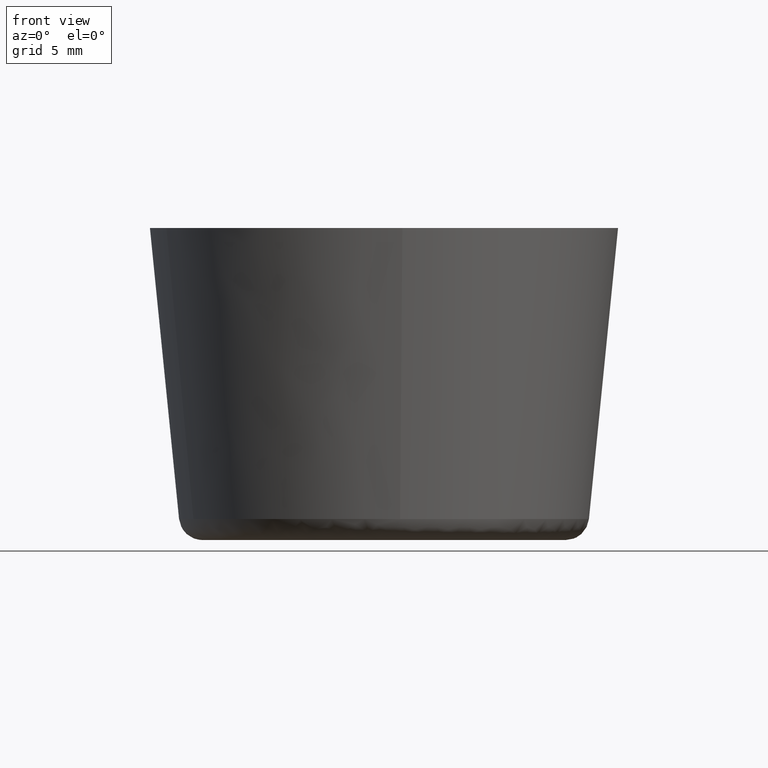
[diagram: clean part render]
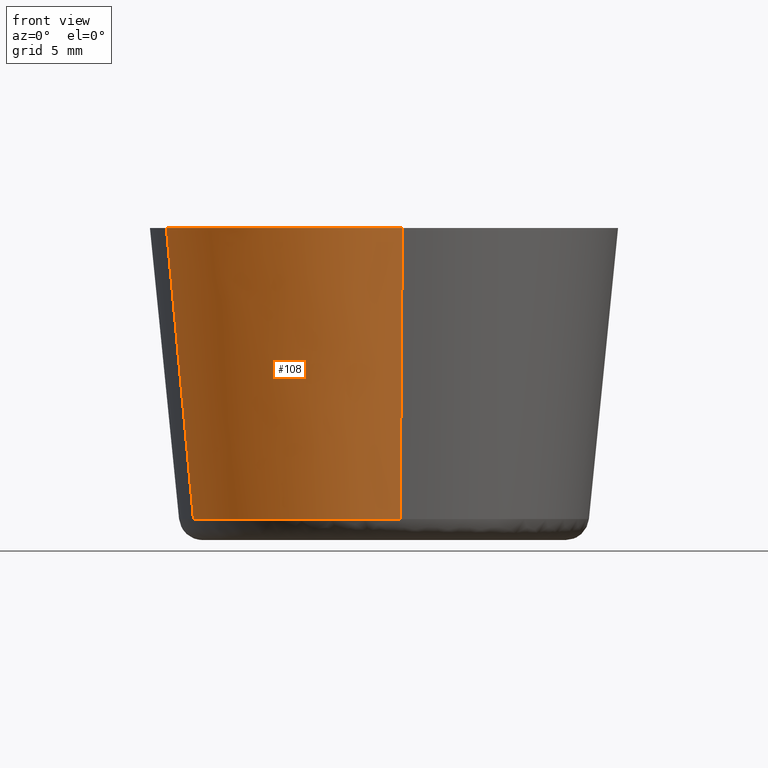
[diagram: same view with one face highlighted and labeled with its STEP entity id]
A machine part, front view. The second image highlights one B-rep face of the part: STEP entity #108.
In plain terms, the highlighted face is a freeform B-spline surface patch.
Its self-contained STEP definition (entity closure, byte-faithful):
#44=CARTESIAN_POINT('',(-12.170484751415133,-4.815272209996599,0.884513582186998));
#45=CARTESIAN_POINT('',(-8.612980301674860,-13.806779184154966,0.884513582186998));
#46=CARTESIAN_POINT('',(1.026908017833442,-13.048103519810960,0.884513582186998));
#47=CARTESIAN_POINT('',(-13.992403335263864,-5.536117279430917,20.477887160445327));
#48=CARTESIAN_POINT('',(-9.902341341474021,-15.873650643468268,20.477887160445327));
#49=CARTESIAN_POINT('',(1.180635896369789,-15.001401418151570,20.477887160445331));
#57=(BOUNDED_SURFACE()B_SPLINE_SURFACE(2,1,((#44,#47),(#45,#48),(#46,#49)),.UNSPECIFIED.,.F.,.F.,.U.)B_SPLINE_SURFACE_WITH_KNOTS((3,3),(2,2),(0.0,19.809642269419701),(0.0,19.691096798235819),.UNSPECIFIED.)GEOMETRIC_REPRESENTATION_ITEM()RATIONAL_B_SPLINE_SURFACE(((0.906274169979695,0.906274169979695),(0.765685424949238,0.765685424949238),(1.0,1.0)))REPRESENTATION_ITEM('')SURFACE());
#58=CARTESIAN_POINT('',(1.030555621959290,-13.094583491800741,1.350742231963600));
#59=VERTEX_POINT('',#58);
#60=CARTESIAN_POINT('',(-12.213839723886680,-4.832419833118689,1.350742433918875));
#61=VERTEX_POINT('',#60);
#62=CARTESIAN_POINT('',(1.030555621959290,-13.094583491800739,1.350742231963600));
#63=CARTESIAN_POINT('',(0.516073231781699,-13.135073728872834,1.350742237333666));
#64=CARTESIAN_POINT('',(-7.493435E-009,-13.135073733965189,1.350742242998451));
#65=CARTESIAN_POINT('',(-8.928885143544781,-13.135073822070973,1.350742341008227));
#66=CARTESIAN_POINT('',(-12.213839723886680,-4.832419833118689,1.350742433918874));
#74=(BOUNDED_CURVE()B_SPLINE_CURVE(2,(#62,#63,#64,#65,#66),.UNSPECIFIED.,.F.,.U.)B_SPLINE_CURVE_WITH_KNOTS((3,2,3),(0.736331436581265,0.750000000000000,0.937532615029448),.UNSPECIFIED.)CURVE()GEOMETRIC_REPRESENTATION_ITEM()RATIONAL_B_SPLINE_CURVE((0.969723639886132,0.983986281854923,1.0,0.780291875006084,0.890203263798775))REPRESENTATION_ITEM(''));
#75=EDGE_CURVE('',#59,#61,#74,.T.);
#76=ORIENTED_EDGE('',*,*,#75,.F.);
#77=CARTESIAN_POINT('',(1.176877817785791,-14.953760451905559,19.999997683682370));
#78=VERTEX_POINT('',#77);
#79=CARTESIAN_POINT('',(1.030555621959290,-13.094583491800741,1.350742231963600));
#80=CARTESIAN_POINT('',(1.176877817785791,-14.953760451905559,19.999997683682370));
#81=QUASI_UNIFORM_CURVE('',1,(#79,#80),.UNSPECIFIED.,.F.,.U.);
#82=EDGE_CURVE('',#59,#78,#81,.T.);
#83=ORIENTED_EDGE('',*,*,#82,.T.);
#84=CARTESIAN_POINT('',(-13.947968010895551,-5.518530671019443,19.999997466659359));
#85=VERTEX_POINT('',#84);
#86=CARTESIAN_POINT('',(1.176877817785791,-14.953760451905552,19.999997683682377));
#87=CARTESIAN_POINT('',(0.589347273754645,-14.999999772741710,19.999997677911637));
#88=CARTESIAN_POINT('',(-4.309222E-009,-14.999999776604669,19.999997671824179));
#89=CARTESIAN_POINT('',(-10.196613181655882,-14.999999843439703,19.999997566501975));
#90=CARTESIAN_POINT('',(-13.947968010895554,-5.518530671019443,19.999997466659359));
#98=(BOUNDED_CURVE()B_SPLINE_CURVE(2,(#86,#87,#88,#89,#90),.UNSPECIFIED.,.F.,.U.)B_SPLINE_CURVE_WITH_KNOTS((3,2,3),(0.736331399219582,0.750000000000000,0.937532605541042),.UNSPECIFIED.)CURVE()GEOMETRIC_REPRESENTATION_ITEM()RATIONAL_B_SPLINE_CURVE((0.969723561915069,0.983986238082989,1.0,0.780291886122443,0.890203252676616))REPRESENTATION_ITEM(''));
#99=EDGE_CURVE('',#78,#85,#98,.T.);
#100=ORIENTED_EDGE('',*,*,#99,.T.);
#101=CARTESIAN_POINT('',(-12.213839723886680,-4.832419833118689,1.350742433918875));
#102=CARTESIAN_POINT('',(-13.947968010895551,-5.518530671019443,19.999997466659359));
#103=QUASI_UNIFORM_CURVE('',1,(#101,#102),.UNSPECIFIED.,.F.,.U.);
#104=EDGE_CURVE('',#61,#85,#103,.T.);
#105=ORIENTED_EDGE('',*,*,#104,.F.);
#106=EDGE_LOOP('',(#76,#83,#100,#105));
#107=FACE_OUTER_BOUND('',#106,.T.);
#108=ADVANCED_FACE('',(#107),#57,.T.);